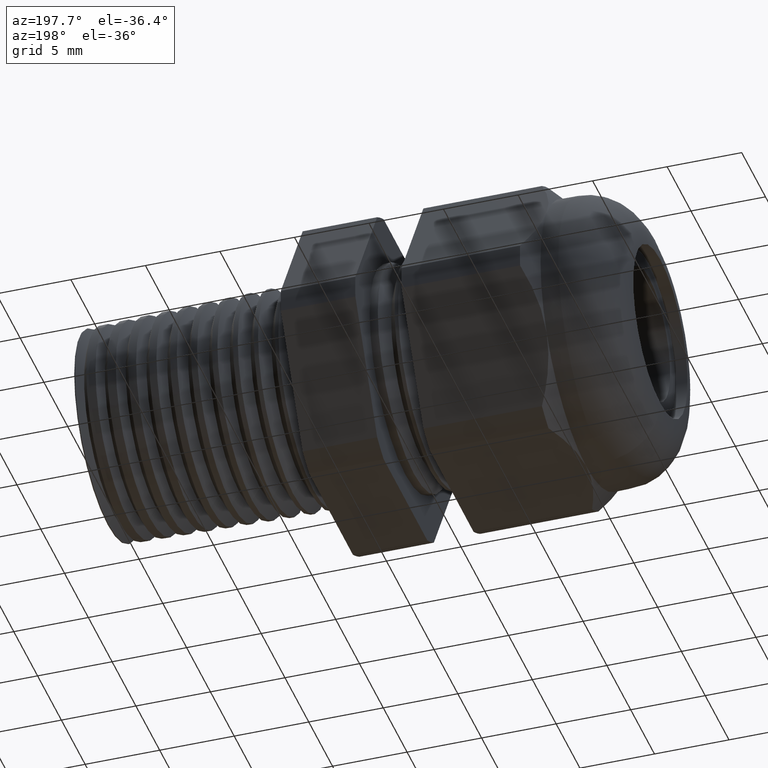
[diagram: clean part render]
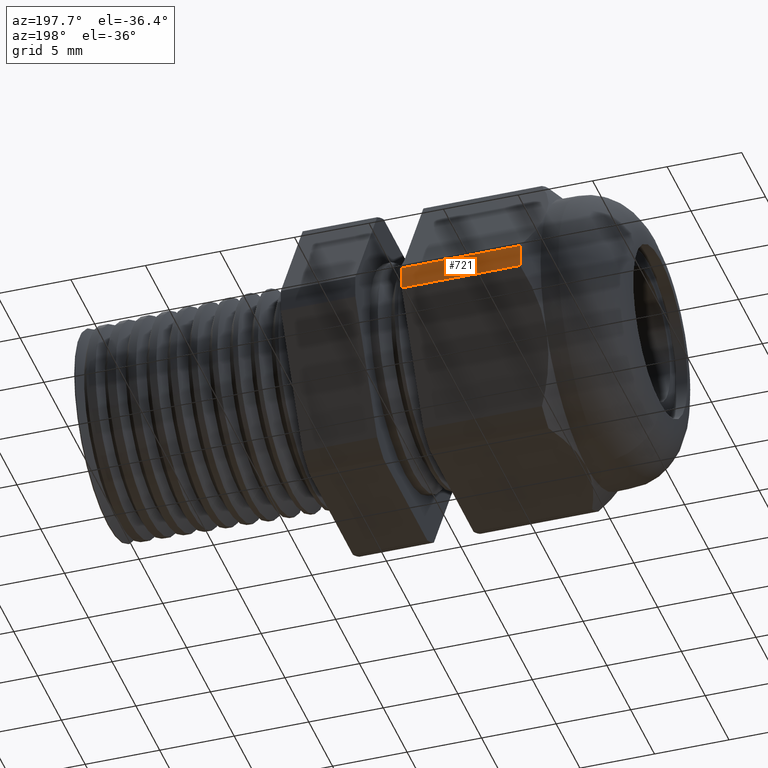
[diagram: same view with one face highlighted and labeled with its STEP entity id]
A machine part, auxiliary view. The second image highlights one B-rep face of the part: STEP entity #721.
In plain terms, the highlighted cylindrical surface (partial cylindrical patch) has radius 10.5727 mm, axis along (-1, 0, 0).
Its self-contained STEP definition (entity closure, byte-faithful):
#600 = VERTEX_POINT ( 'NONE', #2415 ) ;
#602 = EDGE_CURVE ( 'NONE', #603, #600, #2460, .T. ) ;
#603 = VERTEX_POINT ( 'NONE', #2456 ) ;
#655 = EDGE_CURVE ( 'NONE', #656, #657, #2538, .T. ) ;
#656 = VERTEX_POINT ( 'NONE', #2535 ) ;
#657 = VERTEX_POINT ( 'NONE', #2574 ) ;
#721 = ADVANCED_FACE ( 'NONE', ( #2677 ), #2676, .T. ) ;
#722 = EDGE_LOOP ( 'NONE', ( #723, #724, #726, #727 ) ) ;
#723 = ORIENTED_EDGE ( 'NONE', *, *, #602, .T. ) ;
#724 = ORIENTED_EDGE ( 'NONE', *, *, #725, .T. ) ;
#725 = EDGE_CURVE ( 'NONE', #600, #657, #2671, .T. ) ;
#726 = ORIENTED_EDGE ( 'NONE', *, *, #655, .F. ) ;
#727 = ORIENTED_EDGE ( 'NONE', *, *, #728, .F. ) ;
#728 = EDGE_CURVE ( 'NONE', #603, #656, #2730, .T. ) ;
#2415 = CARTESIAN_POINT ( 'NONE',  ( -0.9418996062992126600, 0.4150909474475088000, -0.03104138925901228300 ) ) ;
#2456 = CARTESIAN_POINT ( 'NONE',  ( -0.6288188976377953000, 0.4150909474475088000, -0.03104138925901226600 ) ) ;
#2457 = DIRECTION ( 'NONE',  ( -1.000000000000000000, 0.0000000000000000000, 0.0000000000000000000 ) ) ;
#2458 = VECTOR ( 'NONE', #2457, 39.37007874015748100 ) ;
#2459 = CARTESIAN_POINT ( 'NONE',  ( 0.2800000000000000300, 0.4150909474475088000, -0.03104138925901226200 ) ) ;
#2460 = LINE ( 'NONE', #2459, #2458 ) ;
#2526 = CARTESIAN_POINT ( 'NONE',  ( 0.2800000000000000300, 0.4150909474475088000, 0.03104138925901220300 ) ) ;
#2535 = CARTESIAN_POINT ( 'NONE',  ( -0.6288188976377953000, 0.4150909474475088000, 0.03104138925901220300 ) ) ;
#2536 = DIRECTION ( 'NONE',  ( -1.000000000000000000, 0.0000000000000000000, 0.0000000000000000000 ) ) ;
#2537 = VECTOR ( 'NONE', #2536, 39.37007874015748100 ) ;
#2538 = LINE ( 'NONE', #2526, #2537 ) ;
#2574 = CARTESIAN_POINT ( 'NONE',  ( -0.9418996062992126600, 0.4150909474475088000, 0.03104138925901220300 ) ) ;
#2670 = CARTESIAN_POINT ( 'NONE',  ( -0.9418996062992126600, 0.0000000000000000000, 0.0000000000000000000 ) ) ;
#2671 = CIRCLE ( 'NONE', #2733, 0.4162500000000000100 ) ;
#2672 = DIRECTION ( 'NONE',  ( 0.0000000000000000000, 0.0000000000000000000, 1.000000000000000000 ) ) ;
#2673 = DIRECTION ( 'NONE',  ( -1.000000000000000000, 0.0000000000000000000, 0.0000000000000000000 ) ) ;
#2674 = CARTESIAN_POINT ( 'NONE',  ( 0.2800000000000000300, 0.0000000000000000000, 0.0000000000000000000 ) ) ;
#2675 = AXIS2_PLACEMENT_3D ( 'NONE', #2674, #2673, #2672 ) ;
#2676 = CYLINDRICAL_SURFACE ( 'NONE', #2675, 0.4162500000000000100 ) ;
#2677 = FACE_OUTER_BOUND ( 'NONE', #722, .T. ) ;
#2726 = DIRECTION ( 'NONE',  ( 0.0000000000000000000, 0.0000000000000000000, -1.000000000000000000 ) ) ;
#2727 = DIRECTION ( 'NONE',  ( 1.000000000000000000, 0.0000000000000000000, 0.0000000000000000000 ) ) ;
#2728 = CARTESIAN_POINT ( 'NONE',  ( -0.6288188976377953000, 0.0000000000000000000, 0.0000000000000000000 ) ) ;
#2729 = AXIS2_PLACEMENT_3D ( 'NONE', #2728, #2727, #2726 ) ;
#2730 = CIRCLE ( 'NONE', #2729, 0.4162500000000000100 ) ;
#2731 = DIRECTION ( 'NONE',  ( 0.0000000000000000000, 0.0000000000000000000, -1.000000000000000000 ) ) ;
#2732 = DIRECTION ( 'NONE',  ( 1.000000000000000000, 0.0000000000000000000, 0.0000000000000000000 ) ) ;
#2733 = AXIS2_PLACEMENT_3D ( 'NONE', #2670, #2732, #2731 ) ;